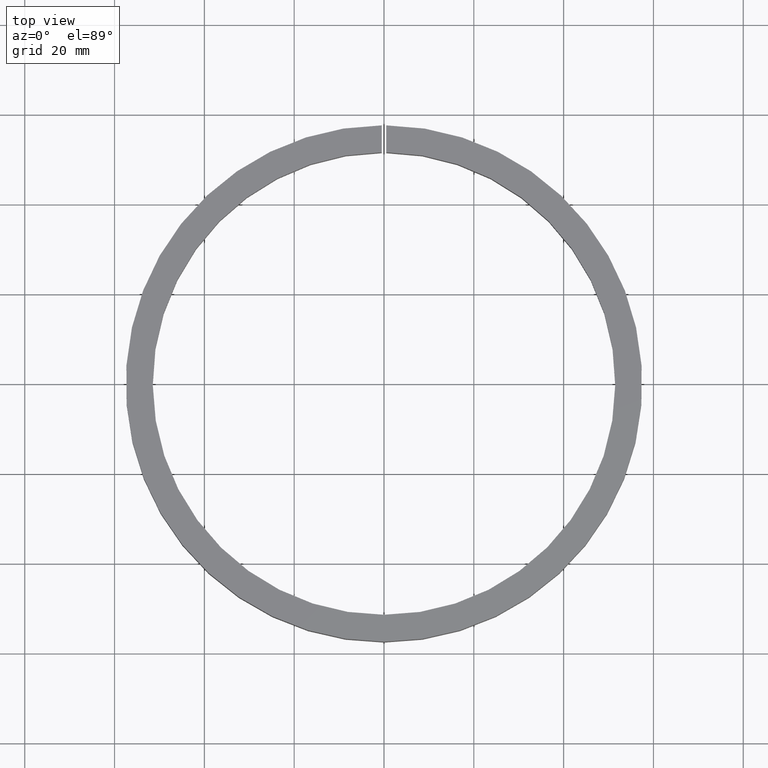
[diagram: clean part render]
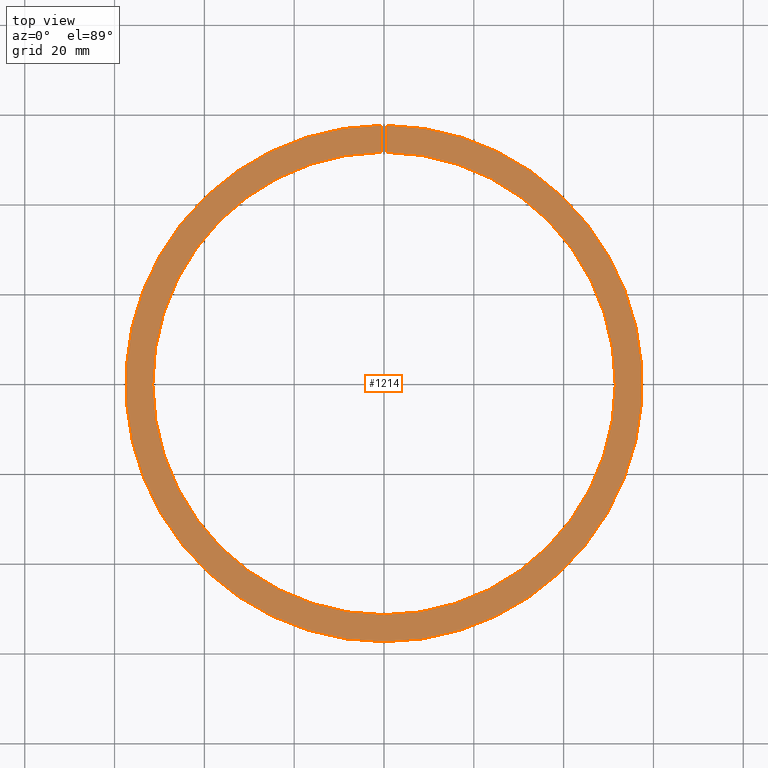
[diagram: same view with one face highlighted and labeled with its STEP entity id]
A machine part, top view. The second image highlights one B-rep face of the part: STEP entity #1214.
In plain terms, the highlighted planar face has unit normal (-0, 0, -1).
Its self-contained STEP definition (entity closure, byte-faithful):
#315 = VECTOR ( 'NONE', #3735, 1000.000000000000000 ) ;
#432 = LINE ( 'NONE', #3788, #10346 ) ;
#1128 = ORIENTED_EDGE ( 'NONE', *, *, #5097, .F. ) ;
#1138 = VERTEX_POINT ( 'NONE', #10441 ) ;
#1214 = ADVANCED_FACE ( 'NONE', ( #5281 ), #3819, .F. ) ;
#1739 = EDGE_LOOP ( 'NONE', ( #1128, #2660, #7122, #5503 ) ) ;
#2162 = CARTESIAN_POINT ( 'NONE',  ( -0.5000000000000000000, 0.0000000000000000000, 6.000000000000005300 ) ) ;
#2197 = DIRECTION ( 'NONE',  ( -1.000000000000000000, 0.0000000000000000000, 0.0000000000000000000 ) ) ;
#2372 = CIRCLE ( 'NONE', #6402, 51.50000000000000700 ) ;
#2660 = ORIENTED_EDGE ( 'NONE', *, *, #5719, .F. ) ;
#2667 = EDGE_CURVE ( 'NONE', #3582, #1138, #3954, .T. ) ;
#3445 = DIRECTION ( 'NONE',  ( -0.0000000000000000000, -0.0000000000000000000, -1.000000000000000000 ) ) ;
#3582 = VERTEX_POINT ( 'NONE', #9303 ) ;
#3735 = DIRECTION ( 'NONE',  ( 0.0000000000000000000, 1.000000000000000000, -0.0000000000000000000 ) ) ;
#3788 = CARTESIAN_POINT ( 'NONE',  ( 0.5000000000000000000, 0.0000000000000000000, 6.000000000000005300 ) ) ;
#3819 = PLANE ( 'NONE',  #9088 ) ;
#3954 = LINE ( 'NONE', #2162, #315 ) ;
#4510 = VERTEX_POINT ( 'NONE', #7416 ) ;
#5097 = EDGE_CURVE ( 'NONE', #7726, #1138, #7064, .T. ) ;
#5281 = FACE_OUTER_BOUND ( 'NONE', #1739, .T. ) ;
#5409 = DIRECTION ( 'NONE',  ( 0.0000000000000000000, 1.000000000000000000, -0.0000000000000000000 ) ) ;
#5503 = ORIENTED_EDGE ( 'NONE', *, *, #2667, .T. ) ;
#5719 = EDGE_CURVE ( 'NONE', #4510, #7726, #432, .T. ) ;
#5895 = DIRECTION ( 'NONE',  ( -1.000000000000000000, 0.0000000000000000000, 0.0000000000000000000 ) ) ;
#6402 = AXIS2_PLACEMENT_3D ( 'NONE', #7633, #3445, #5895 ) ;
#6999 = EDGE_CURVE ( 'NONE', #4510, #3582, #2372, .T. ) ;
#7064 = CIRCLE ( 'NONE', #10343, 57.50000000000000000 ) ;
#7122 = ORIENTED_EDGE ( 'NONE', *, *, #6999, .T. ) ;
#7126 = DIRECTION ( 'NONE',  ( -0.0000000000000000000, -0.0000000000000000000, -1.000000000000000000 ) ) ;
#7279 = CARTESIAN_POINT ( 'NONE',  ( 0.5000000000000000000, 57.49782604586020800, 6.000000000000003600 ) ) ;
#7416 = CARTESIAN_POINT ( 'NONE',  ( 0.5000000000000000000, 51.49757275833493300, 6.000000000000005300 ) ) ;
#7633 = CARTESIAN_POINT ( 'NONE',  ( 0.0000000000000000000, 0.0000000000000000000, 6.000000000000005300 ) ) ;
#7726 = VERTEX_POINT ( 'NONE', #7279 ) ;
#8855 = CARTESIAN_POINT ( 'NONE',  ( 0.0000000000000000000, -51.50000000000000700, 6.000000000000004400 ) ) ;
#9088 = AXIS2_PLACEMENT_3D ( 'NONE', #8855, #9667, #2197 ) ;
#9303 = CARTESIAN_POINT ( 'NONE',  ( -0.5000000000000000000, 51.49757275833493300, 6.000000000000005300 ) ) ;
#9667 = DIRECTION ( 'NONE',  ( -0.0000000000000000000, 0.0000000000000000000, -1.000000000000000000 ) ) ;
#10343 = AXIS2_PLACEMENT_3D ( 'NONE', #10436, #7126, #10508 ) ;
#10346 = VECTOR ( 'NONE', #5409, 1000.000000000000000 ) ;
#10436 = CARTESIAN_POINT ( 'NONE',  ( 0.0000000000000000000, 0.0000000000000000000, 6.000000000000003600 ) ) ;
#10441 = CARTESIAN_POINT ( 'NONE',  ( -0.5000000000000000000, 57.49782604586020800, 6.000000000000005300 ) ) ;
#10508 = DIRECTION ( 'NONE',  ( -1.000000000000000000, 0.0000000000000000000, 0.0000000000000000000 ) ) ;